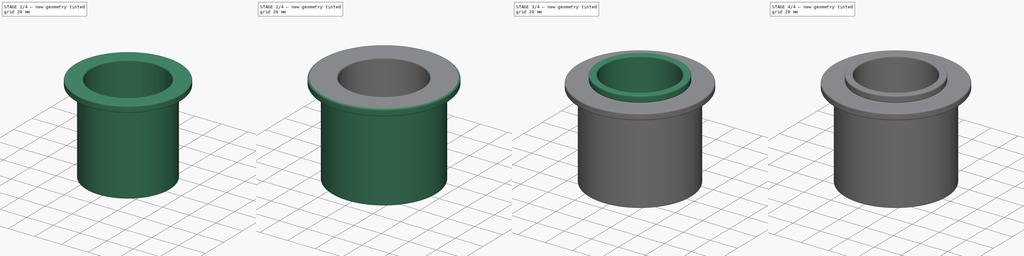
[diagram: build sequence overview — one tinted view per stage of 4, left to right]
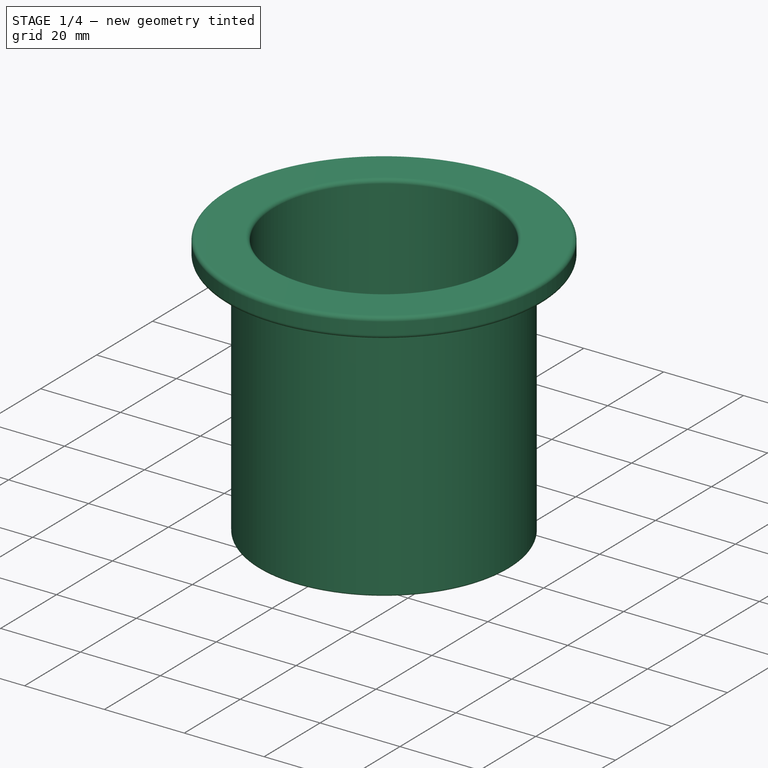
[diagram: stage 1 of 4 — iso view after this stage's code; geometry added in this stage tinted green]
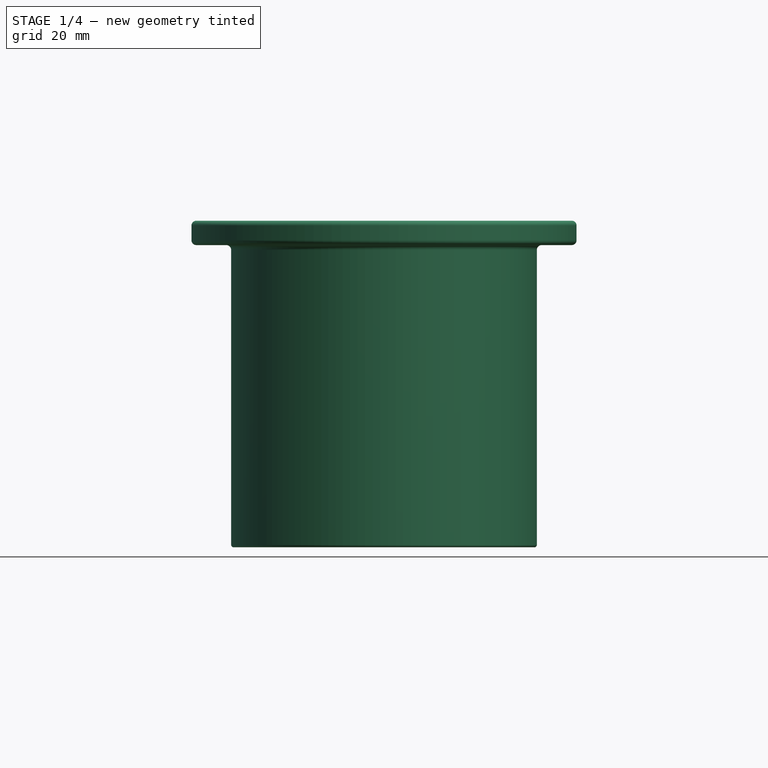
[diagram: stage 1 of 4 — front view after this stage's code; geometry added in this stage tinted green]
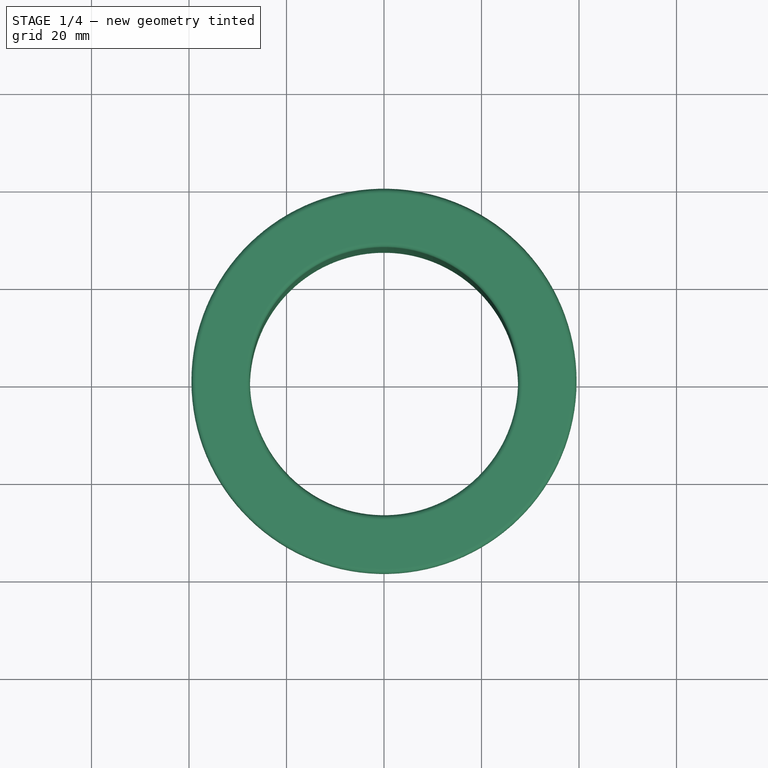
[diagram: stage 1 of 4 — top view after this stage's code; geometry added in this stage tinted green]
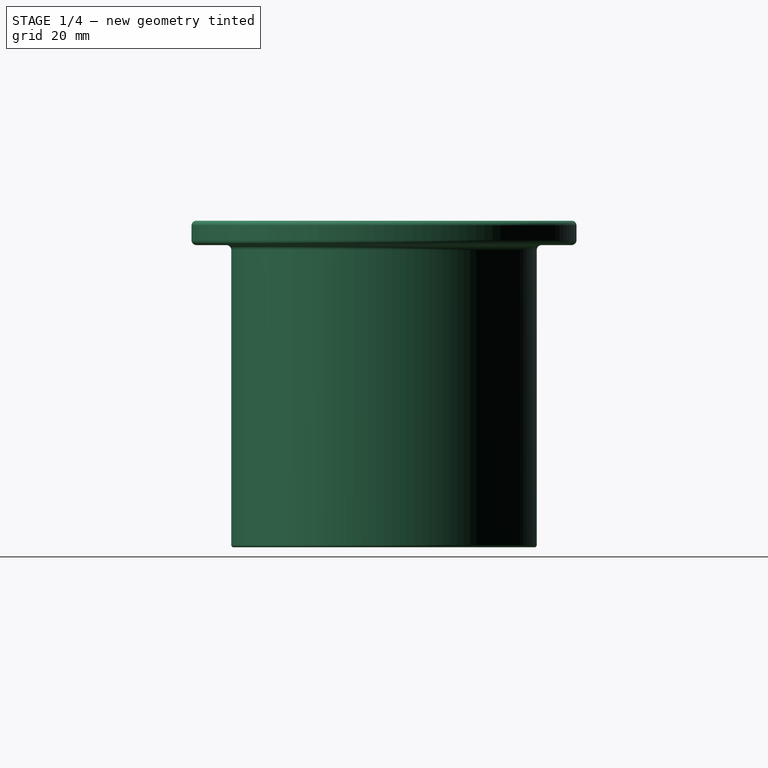
[diagram: stage 1 of 4 — right view after this stage's code; geometry added in this stage tinted green]
FCSTD DOCUMENT  (FreeCAD 1.0RUnknown)
Label: ams-lite-spool-adapter
License: All rights reserved
LicenseURL: http://en.wikipedia.org/wiki/All_rights_reserved
objects: PartDesign::Fillet×8, Sketcher::SketchObject×4, PartDesign::Revolution×4, PartDesign::Body×4
note: 48 computed .brp shape members not serialized (recipe doc carries the construction recipe); baked Part::Feature solids carry a one-line shape summary decoded from their .brp

FEATURE [PartDesign::Body] Body002  label="geeetech-filament-rigid"
  AllowCompound = false
  Group = -> [Sketch002,Revolution002,Fillet004,Fillet005]
  Origin = -> Origin002
  Tip = -> Fillet005
FEATURE [Sketcher::SketchObject] Sketch003
  ArcFitTolerance = 0
  AttachmentSupport = -> [XZ_Plane003]
  FullyConstrained = false
  MakeInternals = false
  MapMode = 5
  Placement = pos=(0,0,0) rot=(1,0,0;1.5708rad)
  sketch-geometry (6):
    g0: LineSegment StartX=27.5 StartY=67 StartZ=0 EndX=39.5 EndY=67 EndZ=0
    g1: LineSegment StartX=39.5 StartY=67 StartZ=0 EndX=39.5 EndY=62 EndZ=0
    g2: LineSegment StartX=39.5 StartY=62 StartZ=0 EndX=31.35 EndY=62 EndZ=0
    g3: LineSegment StartX=31.35 StartY=62 StartZ=0 EndX=31.35 EndY=0 EndZ=0
    g4: LineSegment StartX=31.35 StartY=0 StartZ=0 EndX=27.5 EndY=0 EndZ=0
    g5: LineSegment StartX=27.5 StartY=67 StartZ=0 EndX=27.5 EndY=0 EndZ=0
  constraints (17):
    c: Horizontal(g0)
    c: Coincident(g0,g1)
    c: Vertical(g1)
    c: Coincident(g1,g2)
    c: Horizontal(g2)
    c: Coincident(g2,g3)
    c: PointOnObject(g3,g-1)
    c: Vertical(g3)
    c: Coincident(g3,g4)
    c: Vertical(g5)
    c: Coincident(g0,g5)
    c: Coincident(g4,g5)
    c: Distance(g3) = 62
    c: Distance(g1) = 5
    c: Distance(g4,g-1) = 27.5
    c: Distance(g3,g-1) = 31.35
    c: Distance(g0) = 12
FEATURE [PartDesign::Revolution] Revolution003
  Angle = 360
  Angle2 = 60
  Axis = (0,2e-16,1)
  Base = (0,0,0)
  Placement = pos=(0,0,0) rot=(1,0,0;1.5708rad)
  Profile = -> Sketch003
  ReferenceAxis = -> Sketch003 [V_Axis]
  Reversed = true
  Suppressed = false
  Type = 0
FEATURE [PartDesign::Fillet] Fillet006
  Base = -> Revolution003 [Face1,Face3]
  BaseFeature = -> Revolution003
  Placement = pos=(0,0,0) rot=(1,0,0;1.5708rad)
  Radius = 1
  SupportTransform = false
  Suppressed = false
  UseAllEdges = false
FEATURE [PartDesign::Fillet] Fillet007
  Base = -> Fillet006 [Face6]
  BaseFeature = -> Fillet006
  Placement = pos=(0,0,0) rot=(1,0,0;1.5708rad)
  Radius = 0.5
  SupportTransform = false
  Suppressed = false
  UseAllEdges = false
FEATURE [PartDesign::Body] Body003  label="sunlu-petg"
  AllowCompound = false
  Group = -> [Sketch003,Revolution003,Fillet006,Fillet007]
  Origin = -> Origin003
  Tip = -> Fillet007
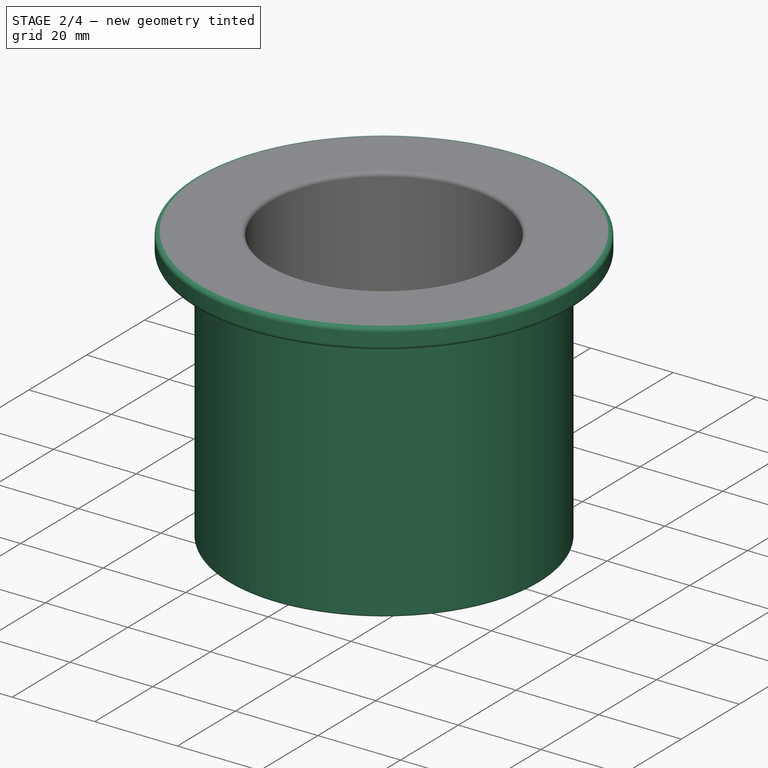
[diagram: stage 2 of 4 — iso view after this stage's code; geometry added in this stage tinted green]
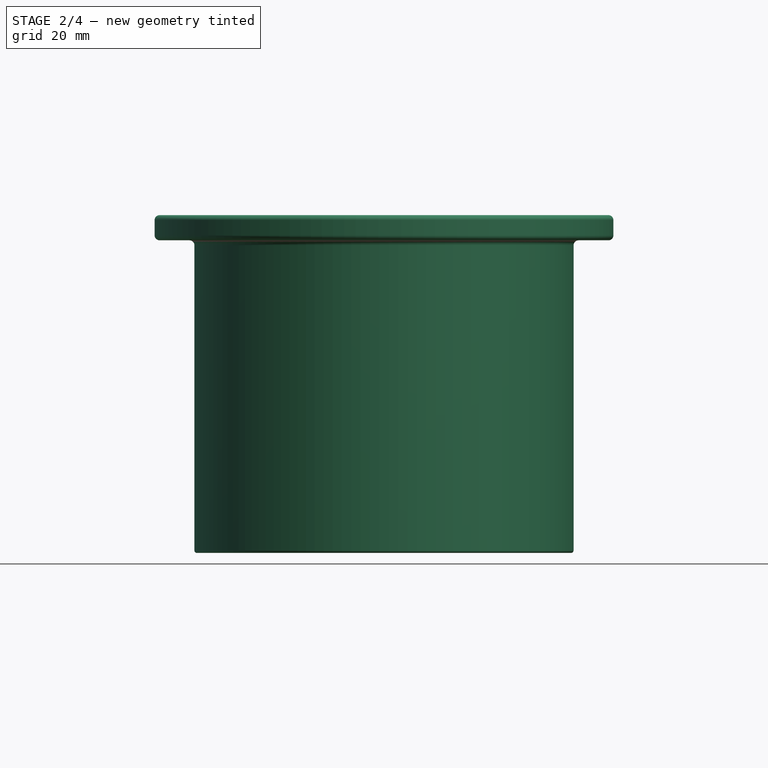
[diagram: stage 2 of 4 — front view after this stage's code; geometry added in this stage tinted green]
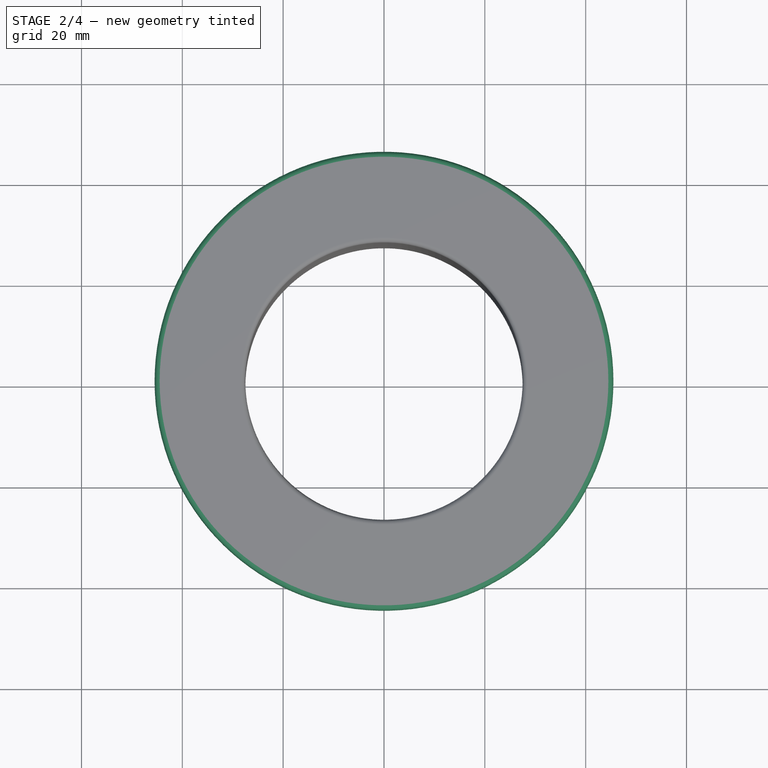
[diagram: stage 2 of 4 — top view after this stage's code; geometry added in this stage tinted green]
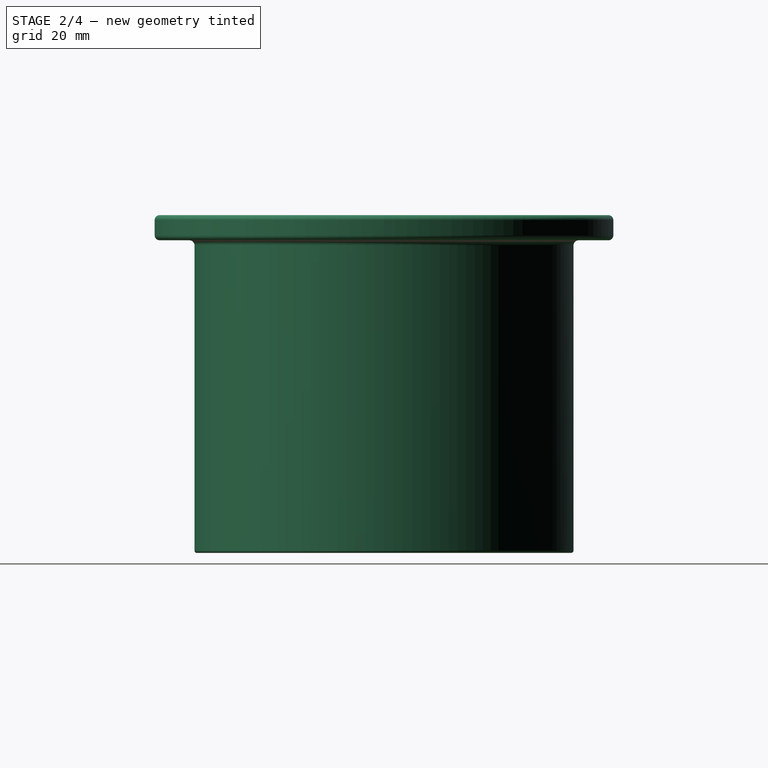
[diagram: stage 2 of 4 — right view after this stage's code; geometry added in this stage tinted green]
FEATURE [PartDesign::Body] Body001  label="soft-sleeve"
  AllowCompound = false
  Group = -> [Sketch001,Revolution001,Fillet002,Fillet003]
  Origin = -> Origin001
  Tip = -> Fillet003
FEATURE [Sketcher::SketchObject] Sketch002
  ArcFitTolerance = 0
  AttachmentSupport = -> [XZ_Plane002]
  FullyConstrained = false
  MakeInternals = false
  MapMode = 5
  Placement = pos=(0,0,0) rot=(1,0,0;1.5708rad)
  sketch-geometry (6):
    g0: LineSegment StartX=27.5 StartY=67 StartZ=0 EndX=45.5 EndY=67 EndZ=0
    g1: LineSegment StartX=45.5 StartY=67 StartZ=0 EndX=45.5 EndY=62 EndZ=0
    g2: LineSegment StartX=45.5 StartY=62 StartZ=0 EndX=37.6 EndY=62 EndZ=0
    g3: LineSegment StartX=37.6 StartY=62 StartZ=0 EndX=37.6 EndY=0 EndZ=0
    g4: LineSegment StartX=37.6 StartY=0 StartZ=0 EndX=27.5 EndY=0 EndZ=0
    g5: LineSegment StartX=27.5 StartY=67 StartZ=0 EndX=27.5 EndY=0 EndZ=0
  constraints (17):
    c: Horizontal(g0)
    c: Coincident(g0,g1)
    c: Vertical(g1)
    c: Coincident(g1,g2)
    c: Horizontal(g2)
    c: Coincident(g2,g3)
    c: PointOnObject(g3,g-1)
    c: Vertical(g3)
    c: Coincident(g3,g4)
    c: Vertical(g5)
    c: Coincident(g0,g5)
    c: Coincident(g4,g5)
    c: Distance(g3) = 62
    c: Distance(g1) = 5
    c: Distance(g4,g-1) = 27.5
    c: Distance(g3,g-1) = 37.6
    c: Distance(g0) = 18
FEATURE [PartDesign::Revolution] Revolution002
  Angle = 360
  Angle2 = 60
  Axis = (0,2e-16,1)
  Base = (0,0,0)
  Placement = pos=(0,0,0) rot=(1,0,0;1.5708rad)
  Profile = -> Sketch002
  ReferenceAxis = -> Sketch002 [V_Axis]
  Reversed = true
  Suppressed = false
  Type = 0
FEATURE [PartDesign::Fillet] Fillet004
  Base = -> Revolution002 [Face1,Face3]
  BaseFeature = -> Revolution002
  Placement = pos=(0,0,0) rot=(1,0,0;1.5708rad)
  Radius = 1
  SupportTransform = false
  Suppressed = false
  UseAllEdges = false
FEATURE [PartDesign::Fillet] Fillet005
  Base = -> Fillet004 [Face6]
  BaseFeature = -> Fillet004
  Placement = pos=(0,0,0) rot=(1,0,0;1.5708rad)
  Radius = 0.5
  SupportTransform = false
  Suppressed = false
  UseAllEdges = false
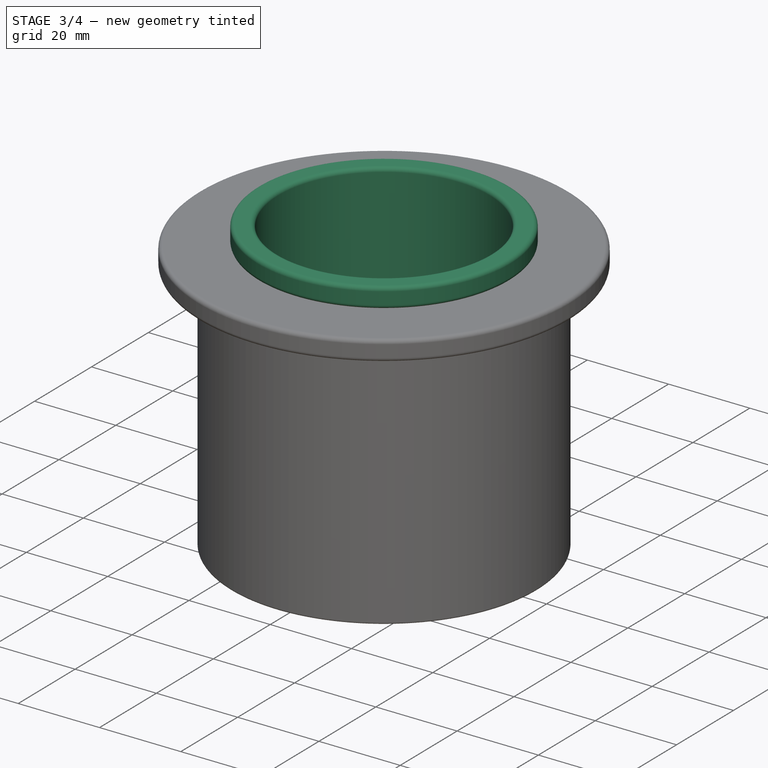
[diagram: stage 3 of 4 — iso view after this stage's code; geometry added in this stage tinted green]
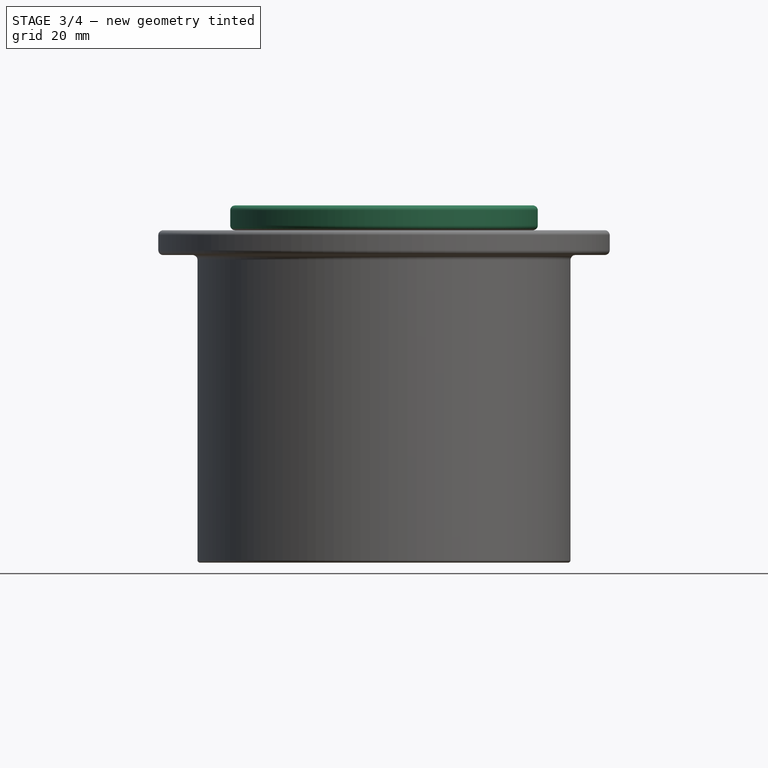
[diagram: stage 3 of 4 — front view after this stage's code; geometry added in this stage tinted green]
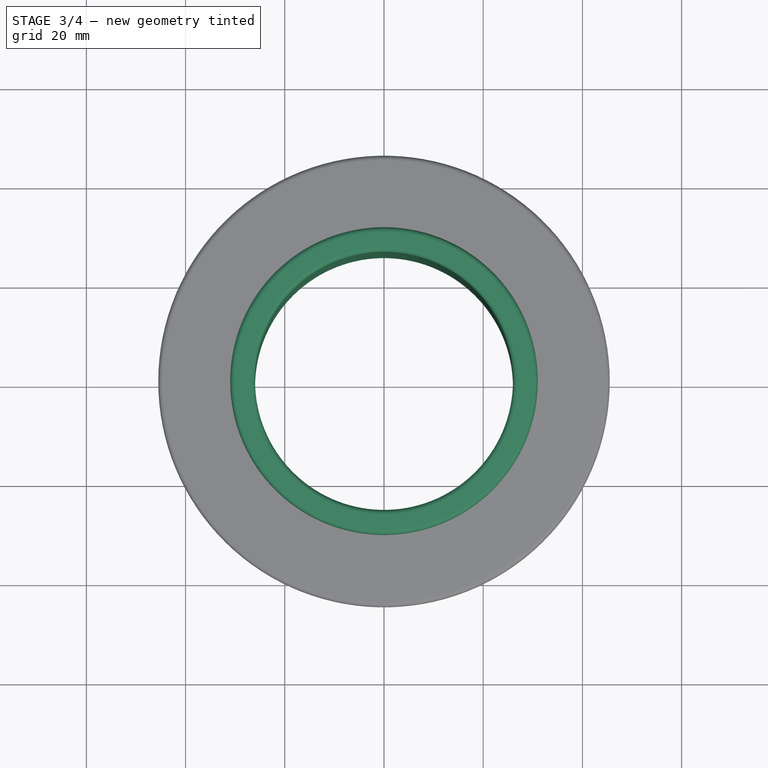
[diagram: stage 3 of 4 — top view after this stage's code; geometry added in this stage tinted green]
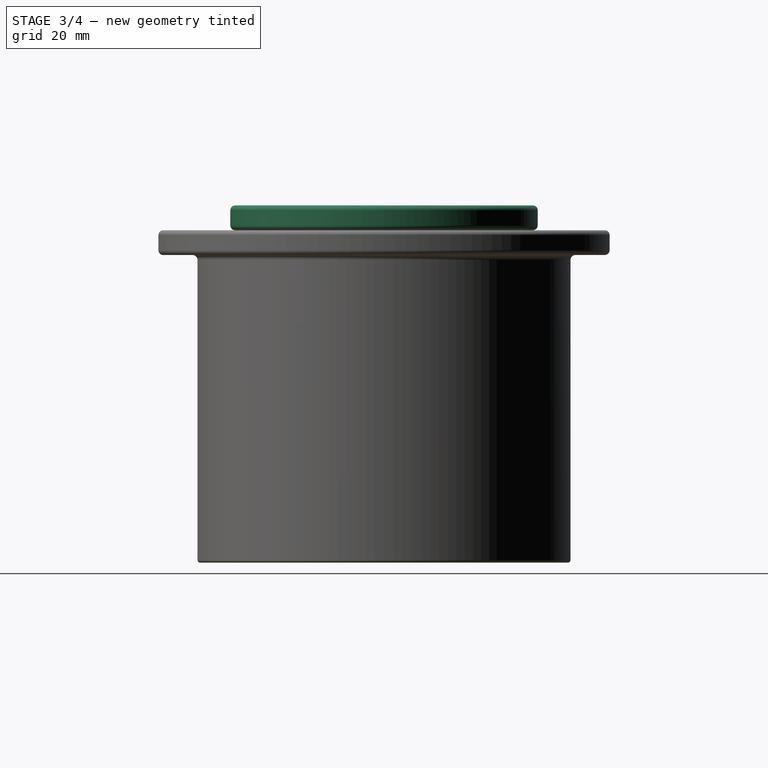
[diagram: stage 3 of 4 — right view after this stage's code; geometry added in this stage tinted green]
FEATURE [PartDesign::Body] Body  label="rigid-sleeve"
  AllowCompound = false
  Group = -> [Sketch,Revolution,Fillet,Fillet001]
  Origin = -> Origin
  Tip = -> Fillet001
FEATURE [Sketcher::SketchObject] Sketch001
  ArcFitTolerance = 0
  AttachmentSupport = -> [XZ_Plane001]
  FullyConstrained = false
  MakeInternals = false
  MapMode = 5
  Placement = pos=(0,0,0) rot=(1,0,0;1.5708rad)
  sketch-geometry (6):
    g0: LineSegment StartX=26 StartY=72 StartZ=0 EndX=31 EndY=72 EndZ=0
    g1: LineSegment StartX=31 StartY=72 StartZ=0 EndX=31 EndY=67 EndZ=0
    g2: LineSegment StartX=31 StartY=67 StartZ=0 EndX=27.5 EndY=67 EndZ=0
    g3: LineSegment StartX=27.5 StartY=67 StartZ=0 EndX=27.5 EndY=0 EndZ=0
    g4: LineSegment StartX=27.5 StartY=0 StartZ=0 EndX=26 EndY=0 EndZ=0
    g5: LineSegment StartX=26 StartY=72 StartZ=0 EndX=26 EndY=0 EndZ=0
  constraints (17):
    c: Horizontal(g0)
    c: Coincident(g0,g1)
    c: Vertical(g1)
    c: Coincident(g1,g2)
    c: Horizontal(g2)
    c: Coincident(g2,g3)
    c: PointOnObject(g3,g-1)
    c: Vertical(g3)
    c: Coincident(g3,g4)
    c: Vertical(g5)
    c: Coincident(g0,g5)
    c: Coincident(g4,g5)
    c: Distance(g3) = 67
    c: Distance(g1) = 5
    c: Distance(g4,g-1) = 26
    c: Distance(g3,g-1) = 27.5
    c: Distance(g0) = 5
FEATURE [PartDesign::Revolution] Revolution001
  Angle = 360
  Angle2 = 60
  Axis = (0,2e-16,1)
  Base = (0,0,0)
  Placement = pos=(0,0,0) rot=(1,0,0;1.5708rad)
  Profile = -> Sketch001
  ReferenceAxis = -> Sketch001 [V_Axis]
  Reversed = true
  Suppressed = false
  Type = 0
FEATURE [PartDesign::Fillet] Fillet002
  Base = -> Revolution001 [Face1,Face3]
  BaseFeature = -> Revolution001
  Placement = pos=(0,0,0) rot=(1,0,0;1.5708rad)
  Radius = 1
  SupportTransform = false
  Suppressed = false
  UseAllEdges = false
FEATURE [PartDesign::Fillet] Fillet003
  Base = -> Fillet002 [Face6]
  BaseFeature = -> Fillet002
  Placement = pos=(0,0,0) rot=(1,0,0;1.5708rad)
  Radius = 0.5
  SupportTransform = false
  Suppressed = false
  UseAllEdges = false
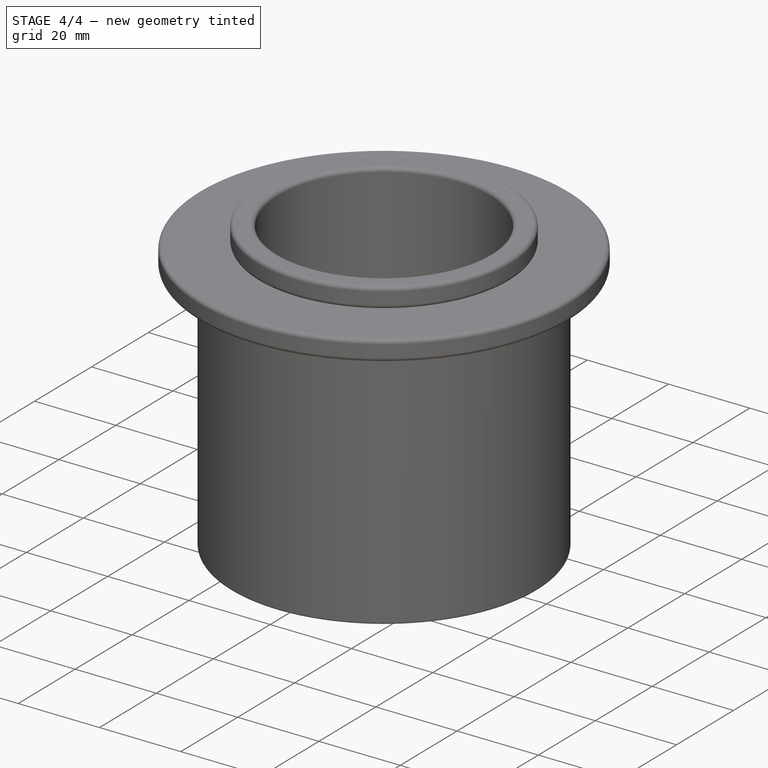
[diagram: stage 4 of 4 — iso view after this stage's code; geometry added in this stage tinted green]
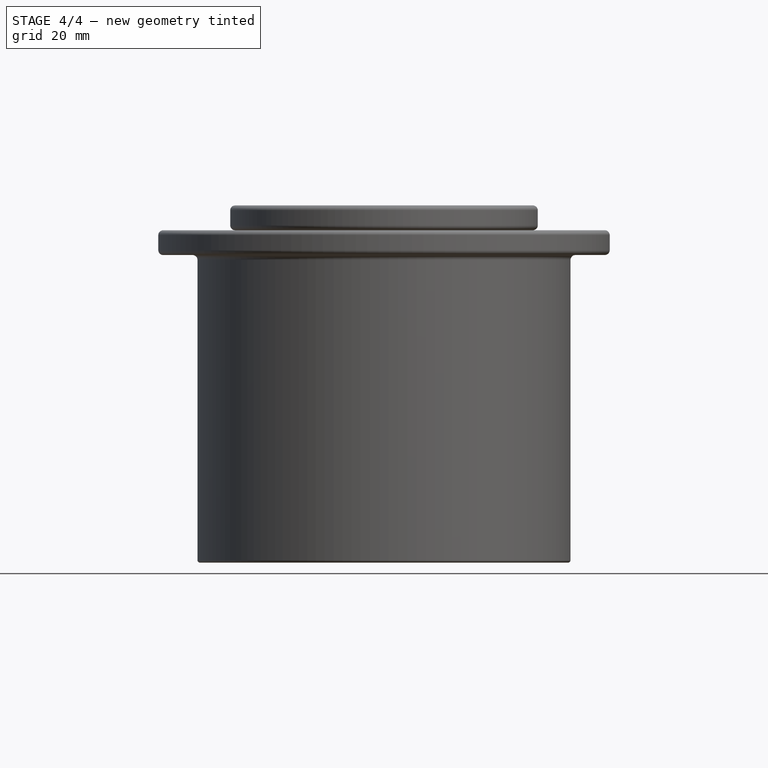
[diagram: stage 4 of 4 — front view after this stage's code; geometry added in this stage tinted green]
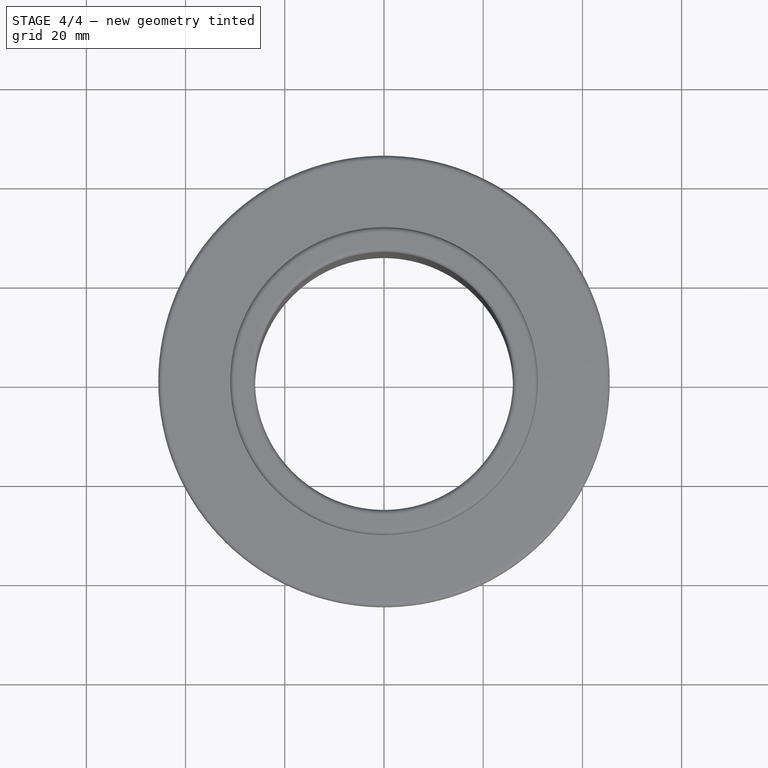
[diagram: stage 4 of 4 — top view after this stage's code; geometry added in this stage tinted green]
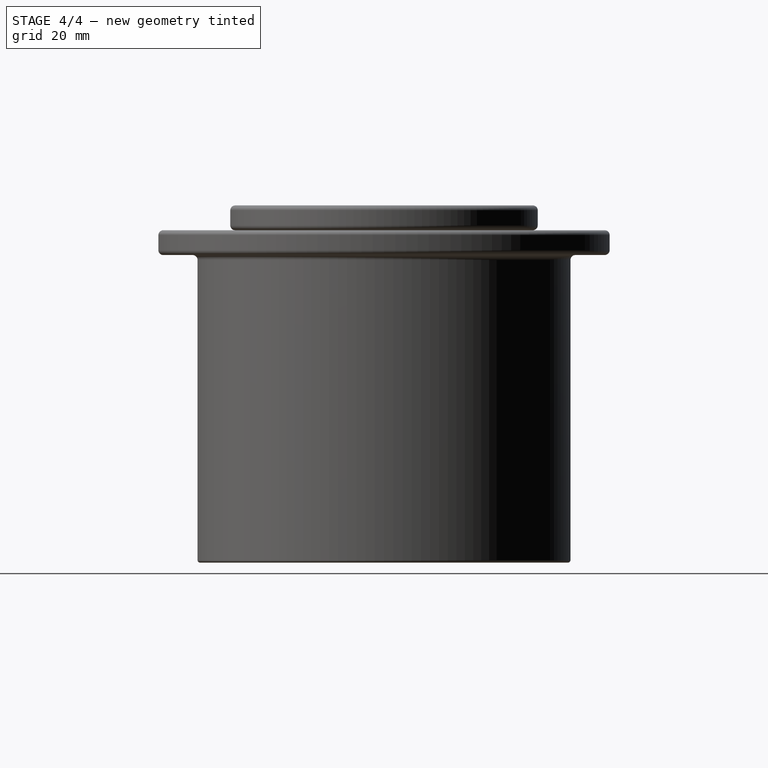
[diagram: stage 4 of 4 — right view after this stage's code; geometry added in this stage tinted green]
FEATURE [Sketcher::SketchObject] Sketch
  ArcFitTolerance = 0
  AttachmentSupport = -> [XZ_Plane]
  FullyConstrained = false
  MakeInternals = false
  MapMode = 5
  Placement = pos=(0,0,0) rot=(1,0,0;1.5708rad)
  sketch-geometry (6):
    g0: LineSegment StartX=27.5 StartY=67 StartZ=0 EndX=32.5 EndY=67 EndZ=0
    g1: LineSegment StartX=32.5 StartY=67 StartZ=0 EndX=32.5 EndY=62 EndZ=0
    g2: LineSegment StartX=32.5 StartY=62 StartZ=0 EndX=29 EndY=62 EndZ=0
    g3: LineSegment StartX=29 StartY=62 StartZ=0 EndX=29 EndY=0 EndZ=0
    g4: LineSegment StartX=29 StartY=0 StartZ=0 EndX=27.5 EndY=0 EndZ=0
    g5: LineSegment StartX=27.5 StartY=67 StartZ=0 EndX=27.5 EndY=0 EndZ=0
  constraints (17):
    c: Horizontal(g0)
    c: Coincident(g0,g1)
    c: Vertical(g1)
    c: Coincident(g1,g2)
    c: Horizontal(g2)
    c: Coincident(g2,g3)
    c: PointOnObject(g3,g-1)
    c: Vertical(g3)
    c: Coincident(g3,g4)
    c: Vertical(g5)
    c: Coincident(g0,g5)
    c: Coincident(g4,g5)
    c: Distance(g3) = 62
    c: Distance(g1) = 5
    c: Distance(g4,g-1) = 27.5
    c: Distance(g3,g-1) = 29
    c: Distance(g0) = 5
FEATURE [PartDesign::Revolution] Revolution
  Angle = 360
  Angle2 = 60
  Axis = (0,2e-16,1)
  Base = (0,0,0)
  Placement = pos=(0,0,0) rot=(1,0,0;1.5708rad)
  Profile = -> Sketch
  ReferenceAxis = -> Sketch [V_Axis]
  Reversed = true
  Suppressed = false
  Type = 0
FEATURE [PartDesign::Fillet] Fillet
  Base = -> Revolution [Face1,Face3]
  BaseFeature = -> Revolution
  Placement = pos=(0,0,0) rot=(1,0,0;1.5708rad)
  Radius = 1
  SupportTransform = false
  Suppressed = false
  UseAllEdges = false
FEATURE [PartDesign::Fillet] Fillet001
  Base = -> Fillet [Face6]
  BaseFeature = -> Fillet
  Placement = pos=(0,0,0) rot=(1,0,0;1.5708rad)
  Radius = 0.5
  SupportTransform = false
  Suppressed = false
  UseAllEdges = false
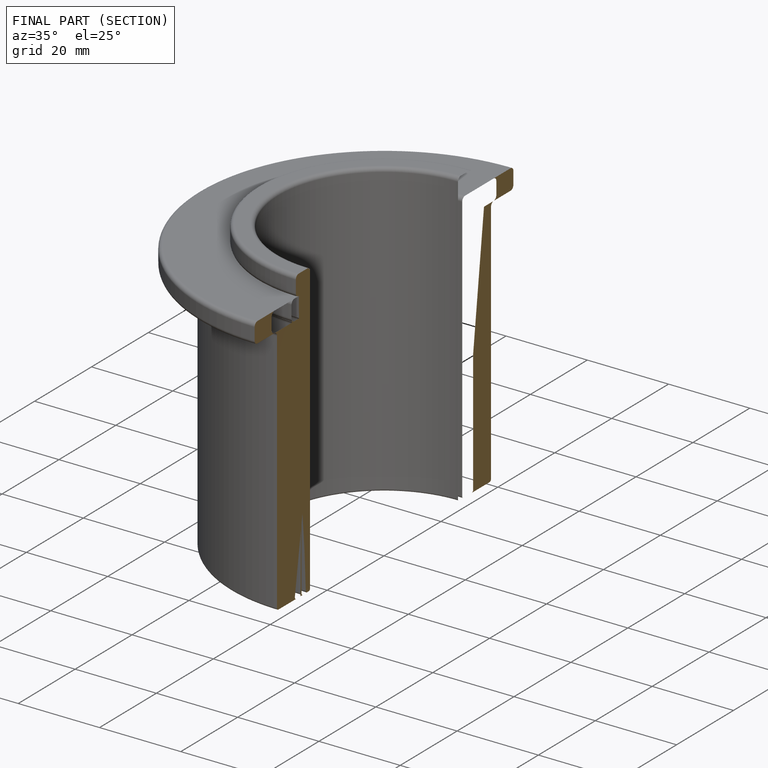
[diagram: finished part — half-section view (interior)]
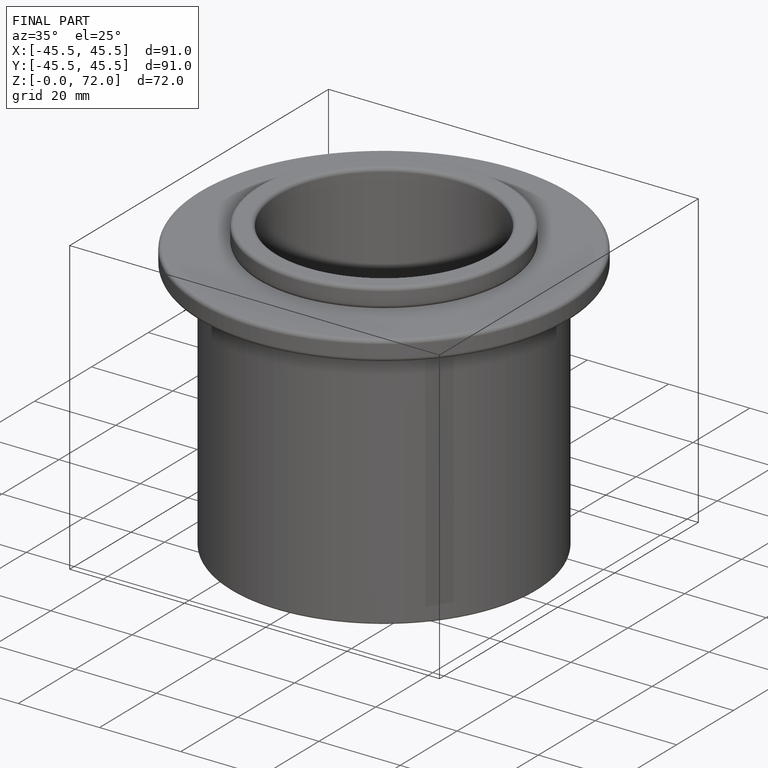
[diagram: finished part — iso view with bounding-box wireframe]
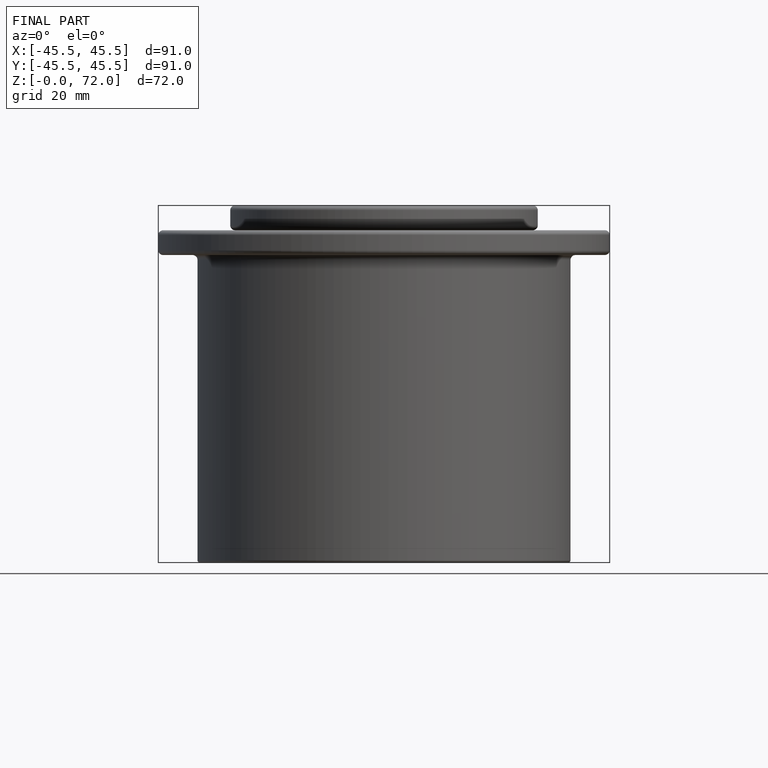
[diagram: finished part — front view with bounding-box wireframe]
